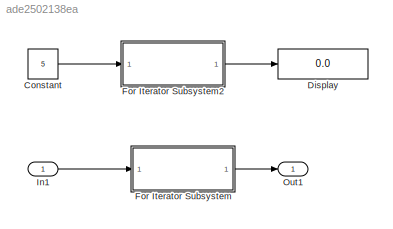
MODEL slx_ade2502138ea
KIND model
CONFIG AbsTol = auto
CONFIG EnableMultiTasking = off
CONFIG FixedStep = auto
CONFIG MaxStep = auto
CONFIG MinStep = auto
CONFIG RelTol = 1e-3
CONFIG SampleTimeConstraint = Unconstrained
CONFIG SolverName = VariableStepAuto
CONFIG StartTime = 0.0
CONFIG StopTime = 10.0
BLOCK [Constant] Constant
  OutDataTypeStr = uint16
  Value = 5
BLOCK [Display] Display
  Decimation = 1
  Format = decimal (Stored Integer)
  Ports = [1]
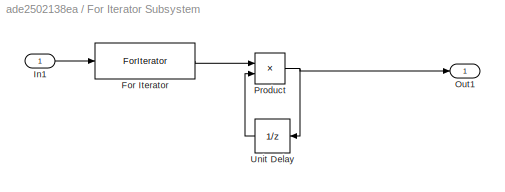
BLOCK [SubSystem] For Iterator Subsystem
  Ports = [1, 1]
  RequestExecContextInheritance = off
  TreatAsAtomicUnit = on
BLOCK [ForIterator] For Iterator Subsystem/For Iterator
  IterationSource = external
  IterationVariableDataType = uint16
  Ports = [1, 1]
BLOCK [Inport] For Iterator Subsystem/In1
BLOCK [Outport] For Iterator Subsystem/Out1
  OutDataTypeStr = uint16
BLOCK [Product] For Iterator Subsystem/Product
  OutDataTypeStr = uint16
  Ports = [2, 1]
BLOCK [UnitDelay] For Iterator Subsystem/Unit Delay
  HasFrameUpgradeWarning = on
  InitialCondition = 1
  SampleTime = -1
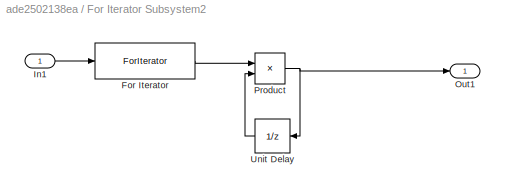
BLOCK [SubSystem] For Iterator Subsystem2
  Ports = [1, 1]
  RequestExecContextInheritance = off
  TreatAsAtomicUnit = on
BLOCK [ForIterator] For Iterator Subsystem2/For Iterator
  IterationSource = external
  IterationVariableDataType = uint16
  Ports = [1, 1]
  ResetStates = reset
BLOCK [Inport] For Iterator Subsystem2/In1
BLOCK [Outport] For Iterator Subsystem2/Out1
  OutDataTypeStr = uint16
BLOCK [Product] For Iterator Subsystem2/Product
  OutDataTypeStr = uint16
  Ports = [2, 1]
BLOCK [UnitDelay] For Iterator Subsystem2/Unit Delay
  HasFrameUpgradeWarning = on
  InitialCondition = 1
  SampleTime = -1
BLOCK [Inport] In1
  OutDataTypeStr = uint16
BLOCK [Outport] Out1
  OutDataTypeStr = uint16
LINE Constant:1 -> For Iterator Subsystem2:1
LINE For Iterator Subsystem/For Iterator:1 -> For Iterator Subsystem/Product:1
LINE For Iterator Subsystem/In1:1 -> For Iterator Subsystem/For Iterator:1
NET For Iterator Subsystem/Product:1 -> For Iterator Subsystem/Out1:1, For Iterator Subsystem/Unit Delay:1
LINE For Iterator Subsystem/Unit Delay:1 -> For Iterator Subsystem/Product:2
LINE For Iterator Subsystem2/For Iterator:1 -> For Iterator Subsystem2/Product:1
LINE For Iterator Subsystem2/In1:1 -> For Iterator Subsystem2/For Iterator:1
NET For Iterator Subsystem2/Product:1 -> For Iterator Subsystem2/Out1:1, For Iterator Subsystem2/Unit Delay:1
LINE For Iterator Subsystem2/Unit Delay:1 -> For Iterator Subsystem2/Product:2
LINE For Iterator Subsystem2:1 -> Display:1
LINE For Iterator Subsystem:1 -> Out1:1
LINE In1:1 -> For Iterator Subsystem:1
note: NET lines group one-source signal fan-out (src -> all destinations, sorted); 1:1 wires keep LINE
